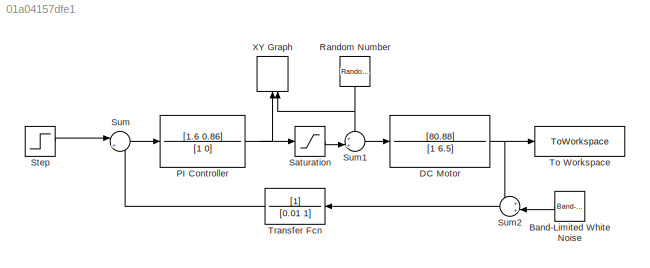
MODEL slx_01a04157dfe1
KIND model
CONFIG AbsTol = auto
CONFIG EnableMultiTasking = off
CONFIG FixedStep = 0.01
CONFIG MaxStep = auto
CONFIG MinStep = auto
CONFIG RelTol = 1e-3
CONFIG SampleTimeConstraint = Unconstrained
CONFIG SolverName = FixedStepAuto
CONFIG StartTime = 0.0
CONFIG StopTime = 10.0
BLOCK [Reference] Band-Limited White Noise  REF=simulink/Sources/Band-Limited
White Noise
  NameLocation = top
  SourceBlock = simulink/Sources/Band-Limited\nWhite Noise
  SourceType = Band-Limited White Noise.
BLOCK [TransferFcn] DC Motor
  Denominator = [1 6.5]
  Numerator = [80.88]
BLOCK [TransferFcn] PI Controller
  Denominator = [1 0]
  Numerator = [1.6 0.86]
BLOCK [RandomNumber] Random Number
  Mean = 10
  NameLocation = left
  SampleTime = 0.1
  Variance = 10
BLOCK [Saturate] Saturation
  LowerLimit = -12
  UpperLimit = 12
BLOCK [Step] Step
  After = 120
  SampleTime = 0
  Time = 0
BLOCK [Sum] Sum
  Inputs = |+-
BLOCK [Sum] Sum1
  Inputs = ++|
BLOCK [Sum] Sum2
  Inputs = ++|
  NameLocation = top
BLOCK [ToWorkspace] To Workspace
  FixptAsFi = on
  MaxDataPoints = inf
  SampleTime = -1
  SaveFormat = Timeseries
  VariableName = y
BLOCK [TransferFcn] Transfer Fcn
  Denominator = [0.01 1]
  NameLocation = top
BLOCK [Record] XY Graph
  CompatibilityTag = XY
  FileSettingsInternal = {"entries":[{"content":{"excelSettings":{"content":{},"type":"Streamout.ExcelSettings"}},"type":"Streamout.FileSettingStorage","uuid":""}],"packageUris":["http:\/\/schema.mathworks.com\/mf0\/streamout_blocks\/R2020a"],"version":"1.0"}
  Layout = [1 1]
  NameLocation = right
  SignalsInternal = {"entries":[{"content":{"signals":[{"content":{"blockPath":[],"dimensions":[1],"domain":"","lineColor":"#a2142f","plots":[ 1 ],"port":1,"sid":[""],"signalID":1,"signalName":"PI Controller"},"type":"RecordBlkView.Signal","uuid":""},{"content":{"blockPath":[],"dimensions":[1],"domain":"","lineColor":"#139fff","plots":[ 1 ],"port":2,"sid":[""],"signalID":2,"signalName":"Random\nNumber"},"type":"Recor...<+173ch>
  VisualizationBindings = {"xyplotplugin":{"info":[{"series":[{"bindingParametersList":[{"parameter":"X-Axis","signalID":1,"signalName":"PI Controller"},{"parameter":"Y-Axis","signalID":2,"signalName":"Random\nNumber"}],"seriesID":0}],"subplotID":1}]}}
LINE Band-Limited White Noise:1 -> Sum2:2
NET DC Motor:1 -> Sum2:1, To Workspace:1
NET PI Controller:1 -> Saturation:1, XY Graph:1
NET Random Number:1 -> Sum1:1, XY Graph:2
LINE Saturation:1 -> Sum1:2
LINE Step:1 -> Sum:1
LINE Sum1:1 -> DC Motor:1
LINE Sum2:1 -> Transfer Fcn:1
LINE Sum:1 -> PI Controller:1
LINE Transfer Fcn:1 -> Sum:2
note: NET lines group one-source signal fan-out (src -> all destinations, sorted); 1:1 wires keep LINE
